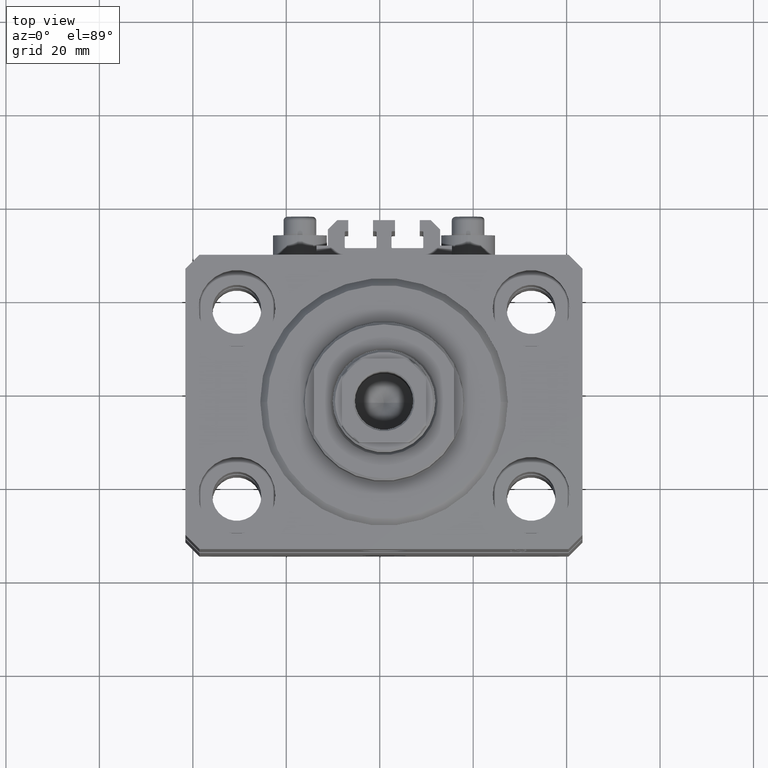
[diagram: clean part render]
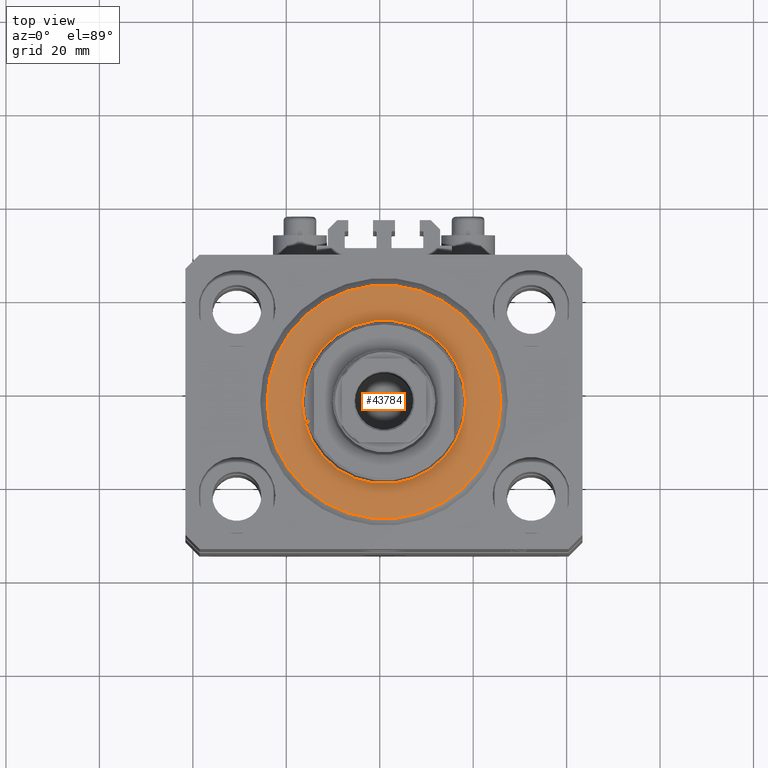
[diagram: same view with one face highlighted and labeled with its STEP entity id]
A machine part, top view. The second image highlights one B-rep face of the part: STEP entity #43784.
In plain terms, the highlighted planar face has unit normal (0, 0, -1).
Its self-contained STEP definition (entity closure, byte-faithful):
#2633 = CARTESIAN_POINT ( 'NONE',  ( -17.50000000000000000, 2.143131898507868643E-15, 2.168404344971008868E-16 ) ) ;
#4729 = AXIS2_PLACEMENT_3D ( 'NONE', #42111, #23827, #45493 ) ;
#6342 = DIRECTION ( 'NONE',  ( 0.000000000000000000, 0.000000000000000000, 1.000000000000000000 ) ) ;
#7277 = EDGE_LOOP ( 'NONE', ( #38573, #35650 ) ) ;
#8086 = VERTEX_POINT ( 'NONE', #31147 ) ;
#8494 = AXIS2_PLACEMENT_3D ( 'NONE', #34016, #37377, #40998 ) ;
#9221 = EDGE_CURVE ( 'NONE', #8086, #35948, #18502, .T. ) ;
#12374 = DIRECTION ( 'NONE',  ( 0.000000000000000000, 0.000000000000000000, 1.000000000000000000 ) ) ;
#12522 = CIRCLE ( 'NONE', #34817, 17.50000000000000000 ) ;
#14014 = EDGE_LOOP ( 'NONE', ( #29493, #14502 ) ) ;
#14502 = ORIENTED_EDGE ( 'NONE', *, *, #23837, .T. ) ;
#18502 = CIRCLE ( 'NONE', #8494, 24.99999999999998224 ) ;
#21035 = DIRECTION ( 'NONE',  ( 1.000000000000000000, 0.000000000000000000, 0.000000000000000000 ) ) ;
#22462 = AXIS2_PLACEMENT_3D ( 'NONE', #32585, #6342, #21035 ) ;
#23724 = EDGE_CURVE ( 'NONE', #45426, #39950, #12522, .T. ) ;
#23827 = DIRECTION ( 'NONE',  ( -0.000000000000000000, -0.000000000000000000, -1.000000000000000000 ) ) ;
#23837 = EDGE_CURVE ( 'NONE', #39950, #45426, #34081, .T. ) ;
#24662 = DIRECTION ( 'NONE',  ( 0.000000000000000000, 0.000000000000000000, 1.000000000000000000 ) ) ;
#24905 = FACE_BOUND ( 'NONE', #14014, .T. ) ;
#27305 = DIRECTION ( 'NONE',  ( 1.000000000000000000, 0.000000000000000000, 0.000000000000000000 ) ) ;
#29493 = ORIENTED_EDGE ( 'NONE', *, *, #23724, .T. ) ;
#30294 = CARTESIAN_POINT ( 'NONE',  ( -24.99999999999998224, 3.153465507804433615E-15, 0.000000000000000000 ) ) ;
#31147 = CARTESIAN_POINT ( 'NONE',  ( 24.99999999999998224, 0.000000000000000000, 0.000000000000000000 ) ) ;
#32585 = CARTESIAN_POINT ( 'NONE',  ( 0.000000000000000000, 0.000000000000000000, 0.000000000000000000 ) ) ;
#33149 = CIRCLE ( 'NONE', #4729, 24.99999999999998224 ) ;
#34016 = CARTESIAN_POINT ( 'NONE',  ( 0.000000000000000000, 0.000000000000000000, 0.000000000000000000 ) ) ;
#34081 = CIRCLE ( 'NONE', #22462, 17.50000000000000000 ) ;
#34817 = AXIS2_PLACEMENT_3D ( 'NONE', #41738, #12374, #27305 ) ;
#35483 = FACE_OUTER_BOUND ( 'NONE', #7277, .T. ) ;
#35650 = ORIENTED_EDGE ( 'NONE', *, *, #45015, .T. ) ;
#35725 = DIRECTION ( 'NONE',  ( 1.000000000000000000, 0.000000000000000000, -0.000000000000000000 ) ) ;
#35948 = VERTEX_POINT ( 'NONE', #30294 ) ;
#37377 = DIRECTION ( 'NONE',  ( -0.000000000000000000, -0.000000000000000000, -1.000000000000000000 ) ) ;
#38447 = CARTESIAN_POINT ( 'NONE',  ( 17.50000000000000000, 0.000000000000000000, 2.168404344971008868E-16 ) ) ;
#38573 = ORIENTED_EDGE ( 'NONE', *, *, #9221, .T. ) ;
#39950 = VERTEX_POINT ( 'NONE', #2633 ) ;
#40998 = DIRECTION ( 'NONE',  ( 1.000000000000000000, 0.000000000000000000, 0.000000000000000000 ) ) ;
#41738 = CARTESIAN_POINT ( 'NONE',  ( 0.000000000000000000, 0.000000000000000000, 0.000000000000000000 ) ) ;
#42111 = CARTESIAN_POINT ( 'NONE',  ( 0.000000000000000000, 0.000000000000000000, 0.000000000000000000 ) ) ;
#43188 = PLANE ( 'NONE',  #45411 ) ;
#43665 = CARTESIAN_POINT ( 'NONE',  ( 0.000000000000000000, 0.000000000000000000, 0.000000000000000000 ) ) ;
#43784 = ADVANCED_FACE ( 'NONE', ( #24905, #35483 ), #43188, .F. ) ;
#45015 = EDGE_CURVE ( 'NONE', #35948, #8086, #33149, .T. ) ;
#45411 = AXIS2_PLACEMENT_3D ( 'NONE', #43665, #24662, #35725 ) ;
#45426 = VERTEX_POINT ( 'NONE', #38447 ) ;
#45493 = DIRECTION ( 'NONE',  ( 1.000000000000000000, 0.000000000000000000, 0.000000000000000000 ) ) ;